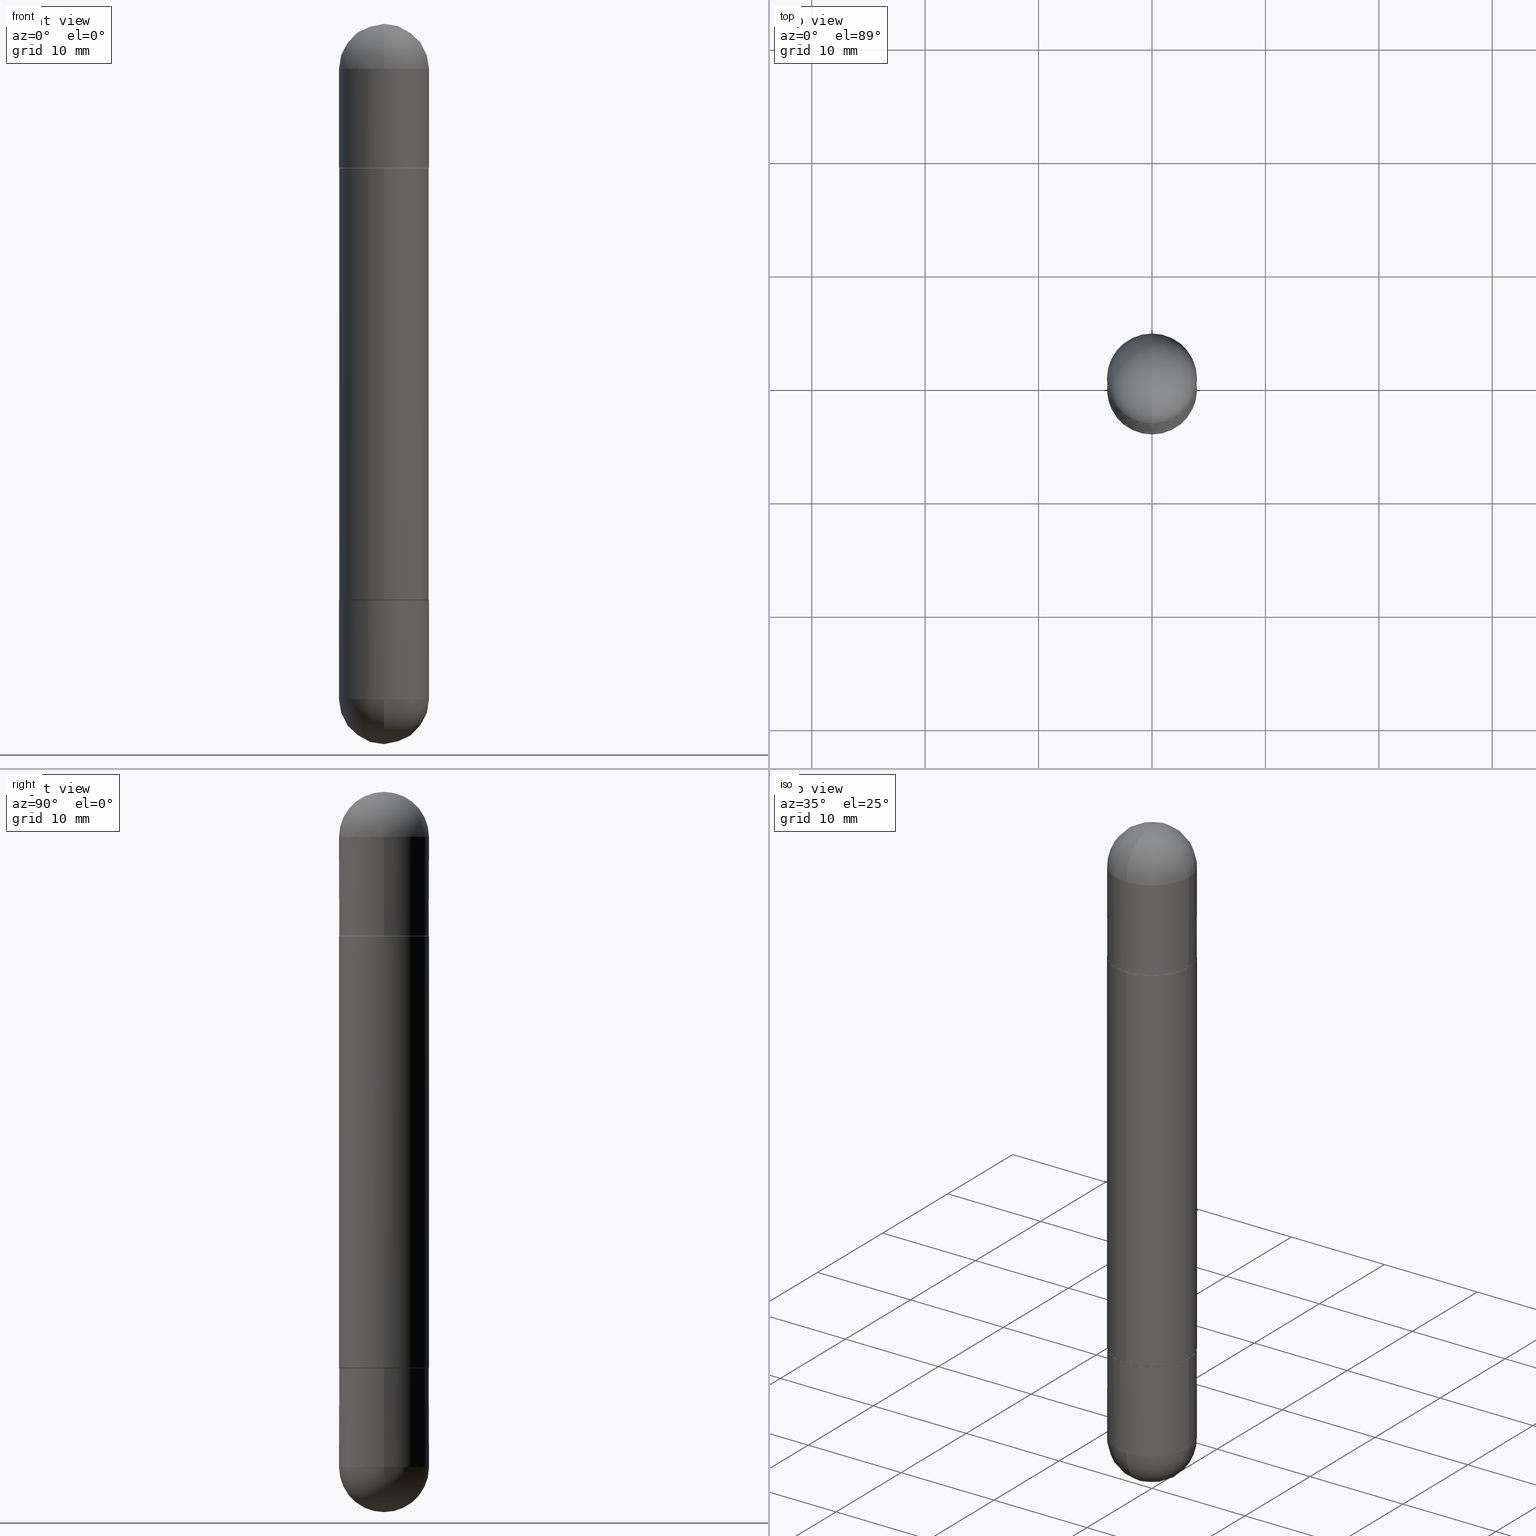
[diagram: canonical four-view strip — front | top / right | iso, engineering-drawing reading convention]
A machine part, canonical four-view strip (front | top / right | iso — engineering-drawing reading convention). The complete STEP part file that produces these views, byte-faithful:
ISO-10303-21;
HEADER;
FILE_DESCRIPTION (( 'STEP AP203' ),
    '1' );
FILE_NAME ('31474.STEP',
    '2024-03-01T12:42:06',
    ( '' ),
    ( '' ),
    'SwSTEP 2.0',
    'SolidWorks 2023',
    '' );
FILE_SCHEMA (( 'CONFIG_CONTROL_DESIGN' ));
ENDSEC;

DATA;
#1 = EDGE_CURVE ( 'NONE', #51, #445, #60, .T. ) ;
#2 = ORIENTED_EDGE ( 'NONE', *, *, #412, .T. ) ;
#3 = FACE_OUTER_BOUND ( 'NONE', #342, .T. ) ;
#4 = CARTESIAN_POINT ( 'NONE',  ( -1.091087918388432039E-15, -0.1562500000000072720, -0.5010000000000013332 ) ) ;
#5 = CONICAL_SURFACE ( 'NONE', #260, 0.1552499999999999991, 0.7853981633974141952 ) ;
#6 = CARTESIAN_POINT ( 'NONE',  ( 4.889962122832023554E-29, -6.984359634226483055E-15, -0.5000000000000004441 ) ) ;
#7 = AXIS2_PLACEMENT_3D ( 'NONE', #531, #464, #22 ) ;
#8 = CARTESIAN_POINT ( 'NONE',  ( 4.889962122832023554E-29, -6.984359634226483055E-15, -0.5000000000000004441 ) ) ;
#9 = DIRECTION ( 'NONE',  ( 1.000000000000000000, -6.982962677686269077E-15, 0.000000000000000000 ) ) ;
#10 = CARTESIAN_POINT ( 'NONE',  ( -1.084104955710744053E-15, -0.1552500000000069935, -0.5000000000000009992 ) ) ;
#11 = EDGE_CURVE ( 'NONE', #353, #181, #395, .T. ) ;
#12 = CARTESIAN_POINT ( 'NONE',  ( -1.084104955710744053E-15, -0.1552500000000069935, -1.999999999999999778 ) ) ;
#13 = DIRECTION ( 'NONE',  ( 2.444981061416011497E-29, -3.492179817113241133E-15, 1.000000000000000000 ) ) ;
#14 = DIRECTION ( 'NONE',  ( -6.982962677686265922E-15, -1.000000000000000000, -3.496765431890253764E-15 ) ) ;
#15 = CARTESIAN_POINT ( 'NONE',  ( 4.890937612370273194E-29, -6.982962677686291165E-15, -2.000000000000000000 ) ) ;
#16 = CARTESIAN_POINT ( 'NONE',  ( 0.1562500000000000000, -8.674148951188436448E-15, -2.343750000000000000 ) ) ;
#17 = ADVANCED_FACE ( 'NONE', ( #639 ), #572, .T. ) ;
#18 = CIRCLE ( 'NONE', #198, 0.1562500000000000000 ) ;
#19 = AXIS2_PLACEMENT_3D ( 'NONE', #517, #574, #270 ) ;
#20 = PRODUCT_DEFINITION_SHAPE ( 'NONE', 'NONE',  #343 ) ;
#21 = CARTESIAN_POINT ( 'NONE',  ( -0.1562500000000000000, -6.511108220648156257E-15, -0.1562500000000005551 ) ) ;
#22 = DIRECTION ( 'NONE',  ( 1.000000000000000000, -6.982962677686262766E-15, 0.000000000000000000 ) ) ;
#23 = AXIS2_PLACEMENT_3D ( 'NONE', #578, #334, #286 ) ;
#24 = CARTESIAN_POINT ( 'NONE',  ( 5.731567514496413899E-29, -8.183159387913622595E-15, -0.1562500000000005551 ) ) ;
#25 = ADVANCED_FACE ( 'NONE', ( #196 ), #115, .F. ) ;
#26 = CARTESIAN_POINT ( 'NONE',  ( 5.400447736582527652E-29, -8.657341756053672891E-15, -0.1562500000000005551 ) ) ;
#27 = EDGE_CURVE ( 'NONE', #489, #440, #34, .T. ) ;
#28 = CARTESIAN_POINT ( 'NONE',  ( -1.110223024625101517E-15, -0.1562500000000085487, -2.343749999999999556 ) ) ;
#29 = CARTESIAN_POINT ( 'NONE',  ( 1.071952812151802595E-15, 0.1562500000000001388, -2.500000000000000000 ) ) ;
#30 = CARTESIAN_POINT ( 'NONE',  ( 5.789233224183170584E-29, -9.193318162129576161E-15, -2.500000000000000000 ) ) ;
#31 = CIRCLE ( 'NONE', #420, 0.1562500000000000000 ) ;
#32 = DATE_AND_TIME ( #593, #759 ) ;
#33 = CARTESIAN_POINT ( 'NONE',  ( 0.1562500000000000000, -1.091087918388479174E-15, 7.619026212181150377E-30 ) ) ;
#34 = CIRCLE ( 'NONE', #729, 0.1562500000000002498 ) ;
#35 = APPLICATION_PROTOCOL_DEFINITION ( 'international standard', 'config_control_design', 1994, #152 ) ;
#36 = DIRECTION ( 'NONE',  ( -2.444981061416011497E-29, 3.492179817113241133E-15, -1.000000000000000000 ) ) ;
#37 = ADVANCED_FACE ( 'NONE', ( #607 ), #42, .T. ) ;
#38 = ORIENTED_EDGE ( 'NONE', *, *, #191, .F. ) ;
#39 = APPROVAL_ROLE ( '' ) ;
#40 = CARTESIAN_POINT ( 'NONE',  ( 4.889962122832023554E-29, -6.984359634226483055E-15, -0.5000000000000004441 ) ) ;
#41 = VERTEX_POINT ( 'NONE', #710 ) ;
#42 = CYLINDRICAL_SURFACE ( 'NONE', #120, 0.1562500000000001388 ) ;
#43 = PERSON_AND_ORGANIZATION ( #739, #791 ) ;
#44 = APPROVAL_PERSON_ORGANIZATION ( #165, #491, #39 ) ;
#45 = DIRECTION ( 'NONE',  ( 2.438088387897960049E-29, -3.491481338843145188E-15, -1.000000000000000000 ) ) ;
#46 = ADVANCED_FACE ( 'NONE', ( #567 ), #351, .T. ) ;
#47 = CARTESIAN_POINT ( 'NONE',  ( 0.000000000000000000, 0.000000000000000000, 0.000000000000000000 ) ) ;
#48 = ORIENTED_EDGE ( 'NONE', *, *, #267, .T. ) ;
#49 = DIRECTION ( 'NONE',  ( 4.851104656540797036E-15, 0.7071067811865257013, -0.7071067811865691111 ) ) ;
#50 = VERTEX_POINT ( 'NONE', #141 ) ;
#51 = VERTEX_POINT ( 'NONE', #266 ) ;
#52 = APPROVAL ( #720, 'UNSPECIFIED' ) ;
#53 = ORIENTED_EDGE ( 'NONE', *, *, #613, .T. ) ;
#54 = PLANE ( 'NONE',  #296 ) ;
#55 = MANIFOLD_SOLID_BREP ( 'Combine1', #678 ) ;
#56 = VECTOR ( 'NONE', #194, 39.37007874015748854 ) ;
#57 = ORIENTED_EDGE ( 'NONE', *, *, #329, .T. ) ;
#58 = CYLINDRICAL_SURFACE ( 'NONE', #700, 0.1562500000000000000 ) ;
#59 = LOCAL_TIME ( 7, 42, 6.000000000000000000, #608 ) ;
#60 = CIRCLE ( 'NONE', #690, 0.1562500000000000000 ) ;
#61 = APPROVAL_DATE_TIME ( #798, #491 ) ;
#62 = DIRECTION ( 'NONE',  ( -6.982962677686265922E-15, -1.000000000000000000, -3.519288880726909138E-15 ) ) ;
#63 = EDGE_CURVE ( 'NONE', #545, #817, #458, .T. ) ;
#64 = CARTESIAN_POINT ( 'NONE',  ( 0.000000000000000000, 0.000000000000000000, -2.500000000000000444 ) ) ;
#65 = DIRECTION ( 'NONE',  ( -2.445468806185136597E-29, 3.491481338843145583E-15, -1.000000000000000000 ) ) ;
#66 = ADVANCED_FACE ( 'NONE', ( #72 ), #211, .T. ) ;
#67 = ORIENTED_EDGE ( 'NONE', *, *, #737, .F. ) ;
#68 = FACE_OUTER_BOUND ( 'NONE', #89, .T. ) ;
#69 = VECTOR ( 'NONE', #337, 39.37007874015748143 ) ;
#70 = VECTOR ( 'NONE', #780, 39.37007874015748143 ) ;
#71 = VERTEX_POINT ( 'NONE', #553 ) ;
#72 = FACE_OUTER_BOUND ( 'NONE', #615, .T. ) ;
#73 = EDGE_CURVE ( 'NONE', #814, #509, #570, .T. ) ;
#74 = CLOSED_SHELL ( 'NONE', ( #17, #513, #707, #422, #528 ) ) ;
#75 =( LENGTH_UNIT ( ) NAMED_UNIT ( * ) SI_UNIT ( $, .METRE. ) );
#76 = CARTESIAN_POINT ( 'NONE',  ( 5.400447736582527652E-29, -8.657341756053672891E-15, -0.1562500000000005551 ) ) ;
#77 = DIRECTION ( 'NONE',  ( -6.982962677686265922E-15, -1.000000000000000000, -3.519288880726909138E-15 ) ) ;
#78 = ORIENTED_EDGE ( 'NONE', *, *, #86, .F. ) ;
#79 = CARTESIAN_POINT ( 'NONE',  ( 4.890937612370273194E-29, -6.982962677686291165E-15, -0.5000000000000006661 ) ) ;
#80 = CARTESIAN_POINT ( 'NONE',  ( 4.887517141770606822E-29, -6.980867454409367849E-15, -0.5010000000000007780 ) ) ;
#81 = VECTOR ( 'NONE', #575, 39.37007874015748143 ) ;
#82 = DIRECTION ( 'NONE',  ( 6.860497997771530774E-15, 1.000000000000000000, 0.000000000000000000 ) ) ;
#83 = FACE_OUTER_BOUND ( 'NONE', #619, .T. ) ;
#84 = CARTESIAN_POINT ( 'NONE',  ( 5.731567514496413899E-29, -8.183159387913622595E-15, -0.1562500000000005551 ) ) ;
#85 = PLANE ( 'NONE',  #368 ) ;
#86 = EDGE_CURVE ( 'NONE', #684, #181, #685, .T. ) ;
#87 = MANIFOLD_SOLID_BREP ( 'Body-Move/Copy2[1]', #74 ) ;
#88 = AXIS2_PLACEMENT_3D ( 'NONE', #40, #609, #743 ) ;
#89 = EDGE_LOOP ( 'NONE', ( #100, #676, #239, #385, #431 ) ) ;
#90 = FACE_OUTER_BOUND ( 'NONE', #725, .T. ) ;
#91 = DIRECTION ( 'NONE',  ( 1.000000000000000000, -6.982962677686269077E-15, 0.000000000000000000 ) ) ;
#92 = ADVANCED_FACE ( 'NONE', ( #327 ), #614, .T. ) ;
#93 = AXIS2_PLACEMENT_3D ( 'NONE', #526, #709, #650 ) ;
#94 = CARTESIAN_POINT ( 'NONE',  ( -1.084104955710744053E-15, -0.1552500000000069935, -0.5000000000000009992 ) ) ;
#95 = DIRECTION ( 'NONE',  ( 2.444981061416011497E-29, -3.492179817113241133E-15, 1.000000000000000000 ) ) ;
#96 = DIRECTION ( 'NONE',  ( -0.000000000000000000, -0.000000000000000000, -1.000000000000000000 ) ) ;
#97 = COORDINATED_UNIVERSAL_TIME_OFFSET ( 5, 0, .BEHIND. ) ;
#98 = CARTESIAN_POINT ( 'NONE',  ( 4.889962122832023554E-29, -6.984359634226483055E-15, -2.000000000000000444 ) ) ;
#99 = CIRCLE ( 'NONE', #88, 0.1552499999999999991 ) ;
#100 = ORIENTED_EDGE ( 'NONE', *, *, #223, .F. ) ;
#101 = DIRECTION ( 'NONE',  ( 0.000000000000000000, 0.000000000000000000, 1.000000000000000000 ) ) ;
#102 = AXIS2_PLACEMENT_3D ( 'NONE', #251, #501, #192 ) ;
#103 = CARTESIAN_POINT ( 'NONE',  ( 1.065092314154079104E-15, 0.1552499999999930047, -0.4999999999999998335 ) ) ;
#104 = ORIENTED_EDGE ( 'NONE', *, *, #276, .F. ) ;
#105 = DIRECTION ( 'NONE',  ( 1.000000000000000000, -6.982962677686265922E-15, -4.883557194083112340E-29 ) ) ;
#106 = PERSON_AND_ORGANIZATION_ROLE ( 'classification_officer' ) ;
#107 = ADVANCED_FACE ( 'NONE', ( #83 ), #383, .T. ) ;
#108 = ORIENTED_EDGE ( 'NONE', *, *, #446, .T. ) ;
#109 = CARTESIAN_POINT ( 'NONE',  ( 0.000000000000000000, 0.000000000000000000, 0.000000000000000000 ) ) ;
#110 = ORIENTED_EDGE ( 'NONE', *, *, #259, .T. ) ;
#111 = CIRCLE ( 'NONE', #659, 0.1562500000000002776 ) ;
#112 = CARTESIAN_POINT ( 'NONE',  ( -0.1562500000000000000, 1.071952812151801807E-15, -2.500000000000000444 ) ) ;
#113 = ADVANCED_FACE ( 'NONE', ( #587 ), #139, .T. ) ;
#114 = ORIENTED_EDGE ( 'NONE', *, *, #535, .F. ) ;
#115 = PLANE ( 'NONE',  #202 ) ;
#116 = AXIS2_PLACEMENT_3D ( 'NONE', #328, #765, #530 ) ;
#117 = APPROVAL_DATE_TIME ( #432, #588 ) ;
#118 = ORIENTED_EDGE ( 'NONE', *, *, #693, .F. ) ;
#119 = DIRECTION ( 'NONE',  ( 2.444981061416011497E-29, -3.492179817113241133E-15, 1.000000000000000000 ) ) ;
#120 = AXIS2_PLACEMENT_3D ( 'NONE', #176, #372, #14 ) ;
#121 = VERTEX_POINT ( 'NONE', #561 ) ;
#122 = EDGE_CURVE ( 'NONE', #302, #170, #718, .T. ) ;
#123 = DIRECTION ( 'NONE',  ( -6.982962677686265922E-15, -1.000000000000000000, -3.492179817113241133E-15 ) ) ;
#124 = SPHERICAL_SURFACE ( 'NONE', #597, 0.1562500000000002498 ) ;
#125 = VERTEX_POINT ( 'NONE', #275 ) ;
#126 = FACE_OUTER_BOUND ( 'NONE', #498, .T. ) ;
#127 = ORIENTED_EDGE ( 'NONE', *, *, #508, .F. ) ;
#128 = ORIENTED_EDGE ( 'NONE', *, *, #396, .T. ) ;
#129 = FACE_OUTER_BOUND ( 'NONE', #550, .T. ) ;
#130 = AXIS2_PLACEMENT_3D ( 'NONE', #758, #818, #621 ) ;
#131 = VERTEX_POINT ( 'NONE', #210 ) ;
#132 = LINE ( 'NONE', #323, #56 ) ;
#133 = ORIENTED_EDGE ( 'NONE', *, *, #543, .T. ) ;
#134 = DIRECTION ( 'NONE',  ( -6.982962677686265922E-15, -1.000000000000000000, 3.492179817113241133E-15 ) ) ;
#135 = DIRECTION ( 'NONE',  ( 2.445468806185136597E-29, -3.491481338843145583E-15, 1.000000000000000000 ) ) ;
#136 = ORIENTED_EDGE ( 'NONE', *, *, #717, .F. ) ;
#137 = DIRECTION ( 'NONE',  ( 1.000000000000000000, -6.982962677686265922E-15, 4.883557194083112340E-29 ) ) ;
#138 = UNCERTAINTY_MEASURE_WITH_UNIT (LENGTH_MEASURE( 1.000000000000000082E-05 ), #666, 'distance_accuracy_value', 'NONE');
#139 = CYLINDRICAL_SURFACE ( 'NONE', #631, 0.1562500000000000000 ) ;
#140 = DIRECTION ( 'NONE',  ( -2.444981061416011497E-29, 3.492179817113241133E-15, 1.000000000000000000 ) ) ;
#141 = CARTESIAN_POINT ( 'NONE',  ( 1.106670310946405735E-15, 0.1552499999999930047, -2.000000000000000888 ) ) ;
#142 = FACE_OUTER_BOUND ( 'NONE', #307, .T. ) ;
#143 = AXIS2_PLACEMENT_3D ( 'NONE', #109, #668, #240 ) ;
#144 = AXIS2_PLACEMENT_3D ( 'NONE', #225, #485, #803 ) ;
#145 =( GEOMETRIC_REPRESENTATION_CONTEXT ( 3 ) GLOBAL_UNCERTAINTY_ASSIGNED_CONTEXT ( ( #138 ) ) GLOBAL_UNIT_ASSIGNED_CONTEXT ( ( #666, #663, #671 ) ) REPRESENTATION_CONTEXT ( 'NONE', 'WORKASPACE' ) );
#146 = CC_DESIGN_DATE_AND_TIME_ASSIGNMENT ( #32, #356, ( #675 ) ) ;
#147 = AXIS2_PLACEMENT_3D ( 'NONE', #205, #391, #9 ) ;
#148 = VECTOR ( 'NONE', #331, 39.37007874015748854 ) ;
#149 = CYLINDRICAL_SURFACE ( 'NONE', #201, 0.1562500000000001388 ) ;
#150 = LINE ( 'NONE', #656, #81 ) ;
#151 = CARTESIAN_POINT ( 'NONE',  ( 5.400447736582527652E-29, -8.657341756053672891E-15, -2.343750000000000000 ) ) ;
#152 = APPLICATION_CONTEXT ( 'configuration controlled 3d designs of mechanical parts and assemblies' ) ;
#153 = CARTESIAN_POINT ( 'NONE',  ( -1.091087918388432039E-15, -0.1562500000000072720, -0.5010000000000013332 ) ) ;
#154 = ORIENTED_EDGE ( 'NONE', *, *, #191, .T. ) ;
#155 = DIRECTION ( 'NONE',  ( 1.000000000000000000, -6.982962677686262766E-15, 0.000000000000000000 ) ) ;
#156 = CARTESIAN_POINT ( 'NONE',  ( -1.091087918388479962E-15, -0.1562500000000001388, -2.500000000000001332 ) ) ;
#157 = VECTOR ( 'NONE', #36, 39.37007874015748143 ) ;
#158 = LOCAL_TIME ( 7, 42, 6.000000000000000000, #289 ) ;
#159 = DIRECTION ( 'NONE',  ( 6.982962677686265922E-15, 1.000000000000000000, 3.496765431890251398E-15 ) ) ;
#160 = CARTESIAN_POINT ( 'NONE',  ( 4.887517141770606822E-29, -6.980867454409367849E-15, -0.5010000000000007780 ) ) ;
#161 = CALENDAR_DATE ( 2024, 1, 3 ) ;
#162 = DIRECTION ( 'NONE',  ( 1.000000000000000000, -6.860497997771530774E-15, -4.840798879624142912E-29 ) ) ;
#163 = ORIENTED_EDGE ( 'NONE', *, *, #600, .T. ) ;
#164 = ADVANCED_FACE ( 'NONE', ( #633 ), #374, .T. ) ;
#165 = PERSON_AND_ORGANIZATION ( #739, #791 ) ;
#166 = ORIENTED_EDGE ( 'NONE', *, *, #697, .T. ) ;
#167 = CARTESIAN_POINT ( 'NONE',  ( 5.789233224183170584E-29, -9.193318162129576161E-15, -3.073328992872296367E-16 ) ) ;
#168 = AXIS2_PLACEMENT_3D ( 'NONE', #569, #692, #262 ) ;
#169 = AXIS2_PLACEMENT_3D ( 'NONE', #215, #339, #463 ) ;
#170 = VERTEX_POINT ( 'NONE', #652 ) ;
#171 = PLANE ( 'NONE',  #493 ) ;
#172 = VERTEX_POINT ( 'NONE', #94 ) ;
#173 = CIRCLE ( 'NONE', #188, 0.1552499999999999991 ) ;
#174 = FACE_OUTER_BOUND ( 'NONE', #691, .T. ) ;
#175 = ORIENTED_EDGE ( 'NONE', *, *, #338, .T. ) ;
#176 = CARTESIAN_POINT ( 'NONE',  ( 0.000000000000000000, 0.000000000000000000, -2.500000000000000444 ) ) ;
#177 = APPROVAL_DATE_TIME ( #603, #52 ) ;
#178 = VERTEX_POINT ( 'NONE', #28 ) ;
#179 = CARTESIAN_POINT ( 'NONE',  ( 4.889962122832023554E-29, -6.984359634226483055E-15, -0.5000000000000004441 ) ) ;
#180 = EDGE_CURVE ( 'NONE', #71, #131, #397, .T. ) ;
#181 = VERTEX_POINT ( 'NONE', #320 ) ;
#182 = ORIENTED_EDGE ( 'NONE', *, *, #478, .T. ) ;
#183 = CARTESIAN_POINT ( 'NONE',  ( 4.889962122832022994E-29, -6.984359634226482266E-15, -0.5000000000000006661 ) ) ;
#184 = VECTOR ( 'NONE', #728, 39.37007874015748143 ) ;
#185 = AXIS2_PLACEMENT_3D ( 'NONE', #715, #282, #159 ) ;
#186 = VERTEX_POINT ( 'NONE', #4 ) ;
#187 = CARTESIAN_POINT ( 'NONE',  ( 4.889962122832023554E-29, -6.984359634226483055E-15, -2.000000000000000444 ) ) ;
#188 = AXIS2_PLACEMENT_3D ( 'NONE', #411, #716, #777 ) ;
#189 = ORIENTED_EDGE ( 'NONE', *, *, #613, .F. ) ;
#190 = DIRECTION ( 'NONE',  ( 0.000000000000000000, 0.000000000000000000, 1.000000000000000000 ) ) ;
#191 = EDGE_CURVE ( 'NONE', #50, #181, #257, .T. ) ;
#192 = DIRECTION ( 'NONE',  ( 1.000000000000000000, -6.982962677686262766E-15, 0.000000000000000000 ) ) ;
#193 = ORIENTED_EDGE ( 'NONE', *, *, #388, .F. ) ;
#194 = DIRECTION ( 'NONE',  ( 4.851104656540797036E-15, 0.7071067811865257013, -0.7071067811865691111 ) ) ;
#195 = DIRECTION ( 'NONE',  ( -2.444981061416011497E-29, 3.492179817113241133E-15, -1.000000000000000000 ) ) ;
#196 = FACE_OUTER_BOUND ( 'NONE', #424, .T. ) ;
#197 = EDGE_CURVE ( 'NONE', #51, #131, #401, .T. ) ;
#198 = AXIS2_PLACEMENT_3D ( 'NONE', #355, #347, #418 ) ;
#199 = ORIENTED_EDGE ( 'NONE', *, *, #775, .T. ) ;
#200 = CYLINDRICAL_SURFACE ( 'NONE', #689, 0.1562500000000000000 ) ;
#201 = AXIS2_PLACEMENT_3D ( 'NONE', #702, #398, #642 ) ;
#202 = AXIS2_PLACEMENT_3D ( 'NONE', #183, #677, #123 ) ;
#203 = CARTESIAN_POINT ( 'NONE',  ( 5.400447736582527652E-29, -8.657341756053672891E-15, -2.343750000000000000 ) ) ;
#204 = ADVANCED_FACE ( 'NONE', ( #808 ), #124, .T. ) ;
#205 = CARTESIAN_POINT ( 'NONE',  ( 4.890937612370273194E-29, -6.982962677686291165E-15, -0.5000000000000006661 ) ) ;
#206 = CARTESIAN_POINT ( 'NONE',  ( -1.091087918388440322E-15, -0.1562500000000045242, -1.250000000000000222 ) ) ;
#207 = DIRECTION ( 'NONE',  ( -2.445468806185136597E-29, 3.491481338843145583E-15, 1.000000000000000000 ) ) ;
#208 = AXIS2_PLACEMENT_3D ( 'NONE', #549, #253, #246 ) ;
#209 = DIRECTION ( 'NONE',  ( 2.445468806185136597E-29, -3.491481338843145583E-15, 1.000000000000000000 ) ) ;
#210 = CARTESIAN_POINT ( 'NONE',  ( 0.1562500000000000000, -8.074050596074770339E-15, -0.5000000000000006661 ) ) ;
#211 = CONICAL_SURFACE ( 'NONE', #769, 0.1552499999999999991, 0.7853981633974141952 ) ;
#212 = CARTESIAN_POINT ( 'NONE',  ( -1.084104955710744053E-15, -0.1552500000000069935, -0.5000000000000009992 ) ) ;
#213 = CARTESIAN_POINT ( 'NONE',  ( 5.400447736582527652E-29, -8.657341756053672891E-15, -0.1562500000000005551 ) ) ;
#214 = VERTEX_POINT ( 'NONE', #462 ) ;
#215 = CARTESIAN_POINT ( 'NONE',  ( 4.887517141770606822E-29, -6.980867454409367849E-15, -0.5010000000000007780 ) ) ;
#216 = DIRECTION ( 'NONE',  ( 6.982962677686265922E-15, 1.000000000000000000, 3.496765431890251398E-15 ) ) ;
#217 = EDGE_CURVE ( 'NONE', #684, #261, #763, .T. ) ;
#218 = FACE_OUTER_BOUND ( 'NONE', #312, .T. ) ;
#219 = DIRECTION ( 'NONE',  ( 2.444981061416011497E-29, -3.492179817113241133E-15, 1.000000000000000000 ) ) ;
#220 = AXIS2_PLACEMENT_3D ( 'NONE', #555, #190, #764 ) ;
#221 = ORIENTED_EDGE ( 'NONE', *, *, #298, .T. ) ;
#222 = DIRECTION ( 'NONE',  ( -1.000000000000000000, 0.000000000000000000, 0.000000000000000000 ) ) ;
#223 = EDGE_CURVE ( 'NONE', #694, #816, #719, .T. ) ;
#224 = CALENDAR_DATE ( 2024, 1, 3 ) ;
#225 = CARTESIAN_POINT ( 'NONE',  ( 0.000000000000000000, 0.000000000000000000, -2.500000000000000444 ) ) ;
#226 = ADVANCED_FACE ( 'NONE', ( #590 ), #85, .F. ) ;
#227 = ORIENTED_EDGE ( 'NONE', *, *, #122, .F. ) ;
#228 = SECURITY_CLASSIFICATION_LEVEL ( 'unclassified' ) ;
#229 = LINE ( 'NONE', #103, #444 ) ;
#230 = ORIENTED_EDGE ( 'NONE', *, *, #217, .T. ) ;
#231 = DIRECTION ( 'NONE',  ( 6.982962677686265922E-15, 1.000000000000000000, 3.496765431890251398E-15 ) ) ;
#232 = CLOSED_SHELL ( 'NONE', ( #37, #630, #560, #25, #66, #439 ) ) ;
#233 = LINE ( 'NONE', #112, #778 ) ;
#234 = ORIENTED_EDGE ( 'NONE', *, *, #807, .T. ) ;
#235 = CC_DESIGN_PERSON_AND_ORGANIZATION_ASSIGNMENT ( #787, #299, ( #243 ) ) ;
#236 = ORIENTED_EDGE ( 'NONE', *, *, #681, .T. ) ;
#237 = DIRECTION ( 'NONE',  ( -2.444981061416011497E-29, 3.492179817113241133E-15, 1.000000000000000000 ) ) ;
#238 = ORIENTED_EDGE ( 'NONE', *, *, #358, .F. ) ;
#239 = ORIENTED_EDGE ( 'NONE', *, *, #63, .T. ) ;
#240 = DIRECTION ( 'NONE',  ( 1.000000000000000000, -6.982962677686266711E-15, 4.876176775795936353E-29 ) ) ;
#241 = VERTEX_POINT ( 'NONE', #16 ) ;
#242 = AXIS2_PLACEMENT_3D ( 'NONE', #98, #605, #673 ) ;
#243 = PRODUCT_DEFINITION_FORMATION_WITH_SPECIFIED_SOURCE ( 'ANY', '', #341, .NOT_KNOWN. ) ;
#244 = APPROVAL_PERSON_ORGANIZATION ( #43, #52, #303 ) ;
#245 = ORIENTED_EDGE ( 'NONE', *, *, #658, .F. ) ;
#246 = DIRECTION ( 'NONE',  ( 1.000000000000000000, -6.982962677686269077E-15, 0.000000000000000000 ) ) ;
#247 = EDGE_LOOP ( 'NONE', ( #238, #236, #108, #487, #602 ) ) ;
#248 = AXIS2_PLACEMENT_3D ( 'NONE', #562, #768, #507 ) ;
#249 = EDGE_CURVE ( 'NONE', #489, #816, #354, .T. ) ;
#250 = AXIS2_PLACEMENT_3D ( 'NONE', #160, #219, #586 ) ;
#251 = CARTESIAN_POINT ( 'NONE',  ( 5.731567514496413899E-29, -8.183159387913622595E-15, -2.343750000000000000 ) ) ;
#252 = ORIENTED_EDGE ( 'NONE', *, *, #1, .T. ) ;
#253 = DIRECTION ( 'NONE',  ( 2.445468806185136597E-29, -3.491481338843145583E-15, 1.000000000000000000 ) ) ;
#254 = DIRECTION ( 'NONE',  ( -2.444981061416011497E-29, 3.492179817113241133E-15, -1.000000000000000000 ) ) ;
#255 = VERTEX_POINT ( 'NONE', #330 ) ;
#256 = ORIENTED_EDGE ( 'NONE', *, *, #547, .F. ) ;
#257 = LINE ( 'NONE', #516, #148 ) ;
#258 = DIRECTION ( 'NONE',  ( -0.000000000000000000, -0.000000000000000000, -1.000000000000000000 ) ) ;
#259 = EDGE_CURVE ( 'NONE', #125, #121, #460, .T. ) ;
#260 = AXIS2_PLACEMENT_3D ( 'NONE', #512, #806, #62 ) ;
#261 = VERTEX_POINT ( 'NONE', #153 ) ;
#262 = DIRECTION ( 'NONE',  ( 1.000000000000000000, -6.982962677686262766E-15, 0.000000000000000000 ) ) ;
#263 = LOCAL_TIME ( 7, 42, 6.000000000000000000, #428 ) ;
#264 = DESIGN_CONTEXT ( 'detailed design', #373, 'design' ) ;
#265 = DIRECTION ( 'NONE',  ( 2.445468806185136597E-29, -3.491481338843145583E-15, 1.000000000000000000 ) ) ;
#266 = CARTESIAN_POINT ( 'NONE',  ( 0.1562500000000000000, -8.674148951188436448E-15, -0.1562500000000005551 ) ) ;
#267 = EDGE_CURVE ( 'NONE', #50, #371, #173, .T. ) ;
#268 = DIRECTION ( 'NONE',  ( 1.000000000000000000, -6.982962677686266711E-15, 0.000000000000000000 ) ) ;
#269 = DIRECTION ( 'NONE',  ( 1.000000000000000000, -6.982962677686265922E-15, -4.883557194083112340E-29 ) ) ;
#270 = DIRECTION ( 'NONE',  ( -1.000000000000000000, 6.982962677686265922E-15, 4.876176775795935793E-29 ) ) ;
#271 = DIRECTION ( 'NONE',  ( 2.444981061416011497E-29, -3.492179817113241133E-15, 1.000000000000000000 ) ) ;
#272 = DIRECTION ( 'NONE',  ( -2.444981061416011497E-29, 3.492179817113241133E-15, 1.000000000000000000 ) ) ;
#273 = CIRCLE ( 'NONE', #130, 0.1562500000000000000 ) ;
#274 = CARTESIAN_POINT ( 'NONE',  ( 5.400447736582527652E-29, -8.657341756053672891E-15, -0.1562500000000005551 ) ) ;
#275 = CARTESIAN_POINT ( 'NONE',  ( 5.789233224183170584E-29, -9.193318162129576161E-15, -3.073328992872296367E-16 ) ) ;
#276 = EDGE_CURVE ( 'NONE', #817, #545, #797, .T. ) ;
#277 = ORIENTED_EDGE ( 'NONE', *, *, #737, .T. ) ;
#278 = CARTESIAN_POINT ( 'NONE',  ( 0.1562500000000000000, -8.074050596074770339E-15, -2.000000000000000000 ) ) ;
#279 = AXIS2_PLACEMENT_3D ( 'NONE', #524, #771, #654 ) ;
#280 = LINE ( 'NONE', #472, #571 ) ;
#281 = PRODUCT_RELATED_PRODUCT_CATEGORY ( 'detail', '', ( #341 ) ) ;
#282 = DIRECTION ( 'NONE',  ( 1.000000000000000000, -6.982962677686265922E-15, -4.883557194083112340E-29 ) ) ;
#283 = DIRECTION ( 'NONE',  ( 6.860497997771530774E-15, 1.000000000000000000, 0.000000000000000000 ) ) ;
#284 = EDGE_LOOP ( 'NONE', ( #558, #350 ) ) ;
#285 = DIRECTION ( 'NONE',  ( 2.445468806185136597E-29, -3.491481338843145583E-15, 1.000000000000000000 ) ) ;
#286 = DIRECTION ( 'NONE',  ( -6.982962677686265922E-15, -1.000000000000000000, -3.519288880726909138E-15 ) ) ;
#287 = CIRCLE ( 'NONE', #380, 0.1552499999999999991 ) ;
#288 = APPROVAL_PERSON_ORGANIZATION ( #423, #588, #413 ) ;
#289 = COORDINATED_UNIVERSAL_TIME_OFFSET ( 5, 0, .BEHIND. ) ;
#290 = EDGE_CURVE ( 'NONE', #125, #445, #750, .T. ) ;
#291 = CARTESIAN_POINT ( 'NONE',  ( 0.1562500000000000000, -8.674148951188436448E-15, -0.1562500000000005551 ) ) ;
#292 = EDGE_LOOP ( 'NONE', ( #733, #795, #417, #533 ) ) ;
#293 = DATE_TIME_ROLE ( 'creation_date' ) ;
#294 = FACE_OUTER_BOUND ( 'NONE', #672, .T. ) ;
#295 = CARTESIAN_POINT ( 'NONE',  ( 5.400447736582527652E-29, -8.657341756053672891E-15, -2.343750000000000000 ) ) ;
#296 = AXIS2_PLACEMENT_3D ( 'NONE', #379, #625, #134 ) ;
#297 = ORIENTED_EDGE ( 'NONE', *, *, #500, .F. ) ;
#298 = EDGE_CURVE ( 'NONE', #789, #121, #497, .T. ) ;
#299 = PERSON_AND_ORGANIZATION_ROLE ( 'creator' ) ;
#300 = EDGE_LOOP ( 'NONE', ( #426, #554, #245, #740 ) ) ;
#301 = CARTESIAN_POINT ( 'NONE',  ( 4.890937612370273194E-29, -6.982962677686291165E-15, -2.000000000000000000 ) ) ;
#302 = VERTEX_POINT ( 'NONE', #404 ) ;
#303 = APPROVAL_ROLE ( '' ) ;
#304 = ORIENTED_EDGE ( 'NONE', *, *, #73, .T. ) ;
#305 = DIRECTION ( 'NONE',  ( -6.982962677686265922E-15, -1.000000000000000000, -3.519288880726909138E-15 ) ) ;
#306 = VERTEX_POINT ( 'NONE', #30 ) ;
#307 = EDGE_LOOP ( 'NONE', ( #784, #542, #786, #127 ) ) ;
#308 = ORIENTED_EDGE ( 'NONE', *, *, #592, .T. ) ;
#309 = EDGE_CURVE ( 'NONE', #255, #172, #384, .T. ) ;
#310 = DIRECTION ( 'NONE',  ( -2.445468806185136597E-29, 3.491481338843145583E-15, -1.000000000000000000 ) ) ;
#311 = AXIS2_PLACEMENT_3D ( 'NONE', #367, #537, #546 ) ;
#312 = EDGE_LOOP ( 'NONE', ( #612, #479, #175, #221 ) ) ;
#313 = CARTESIAN_POINT ( 'NONE',  ( -0.1562500000000000000, 1.071952812151801807E-15, -2.500000000000000444 ) ) ;
#314 = ORIENTED_EDGE ( 'NONE', *, *, #459, .F. ) ;
#315 = AXIS2_PLACEMENT_3D ( 'NONE', #566, #140, #390 ) ;
#316 = SHAPE_DEFINITION_REPRESENTATION ( #20, #473 ) ;
#317 = EDGE_LOOP ( 'NONE', ( #304, #454, #713, #314, #53 ) ) ;
#318 = CARTESIAN_POINT ( 'NONE',  ( 0.000000000000000000, 0.000000000000000000, -2.500000000000000444 ) ) ;
#319 = PLANE ( 'NONE',  #481 ) ;
#320 = CARTESIAN_POINT ( 'NONE',  ( 1.071952812151833755E-15, 0.1562499999999933109, -1.999000000000000554 ) ) ;
#321 = CC_DESIGN_PERSON_AND_ORGANIZATION_ASSIGNMENT ( #655, #106, ( #675 ) ) ;
#322 = AXIS2_PLACEMENT_3D ( 'NONE', #496, #258, #450 ) ;
#323 = CARTESIAN_POINT ( 'NONE',  ( 1.065092314154079104E-15, 0.1552499999999930047, -0.4999999999999998335 ) ) ;
#324 = AXIS2_PLACEMENT_3D ( 'NONE', #711, #285, #644 ) ;
#325 = DIRECTION ( 'NONE',  ( 2.445468806185136597E-29, -3.491481338843145583E-15, 1.000000000000000000 ) ) ;
#326 = CARTESIAN_POINT ( 'NONE',  ( 1.091087918388527886E-15, 0.1562499999999930334, -0.5000000000000001110 ) ) ;
#327 = FACE_OUTER_BOUND ( 'NONE', #433, .T. ) ;
#328 = CARTESIAN_POINT ( 'NONE',  ( 5.400447736582527652E-29, -8.657341756053672891E-15, -2.343750000000000000 ) ) ;
#329 = EDGE_CURVE ( 'NONE', #41, #628, #598, .T. ) ;
#330 = CARTESIAN_POINT ( 'NONE',  ( 1.068522563152965797E-15, 0.1552499999999930047, -0.4999999999999998335 ) ) ;
#331 = DIRECTION ( 'NONE',  ( 5.024295867787889629E-15, 0.7071067811865257013, 0.7071067811865691111 ) ) ;
#332 = SPHERICAL_SURFACE ( 'NONE', #116, 0.1562500000000002498 ) ;
#333 = CIRCLE ( 'NONE', #406, 0.1562500000000000000 ) ;
#334 = DIRECTION ( 'NONE',  ( 2.444981061416011497E-29, -3.492179817113241133E-15, 1.000000000000000000 ) ) ;
#335 = VECTOR ( 'NONE', #584, 39.37007874015748143 ) ;
#336 = CARTESIAN_POINT ( 'NONE',  ( 1.071952812151852491E-15, 0.1562499999999932832, -0.5010000000000002229 ) ) ;
#337 = DIRECTION ( 'NONE',  ( -2.444981061416011497E-29, 3.492179817113241133E-15, -1.000000000000000000 ) ) ;
#338 = EDGE_CURVE ( 'NONE', #445, #789, #370, .T. ) ;
#339 = DIRECTION ( 'NONE',  ( 2.444981061416011497E-29, -3.492179817113241133E-15, 1.000000000000000000 ) ) ;
#340 = DIRECTION ( 'NONE',  ( 1.000000000000000000, -6.982962677686265922E-15, -4.883557194083112340E-29 ) ) ;
#341 = PRODUCT ( '31474', '31474', '', ( #532 ) ) ;
#342 = EDGE_LOOP ( 'NONE', ( #800, #449, #230, #483 ) ) ;
#343 = PRODUCT_DEFINITION ( 'UNKNOWN', '', #243, #264 ) ;
#344 = ORIENTED_EDGE ( 'NONE', *, *, #508, .T. ) ;
#345 = MANIFOLD_SOLID_BREP ( 'Mirror4[4]', #747 ) ;
#346 = PERSON_AND_ORGANIZATION_ROLE ( 'creator' ) ;
#347 = DIRECTION ( 'NONE',  ( -2.445468806185136597E-29, 3.491481338843145583E-15, 1.000000000000000000 ) ) ;
#348 = AXIS2_PLACEMENT_3D ( 'NONE', #389, #754, #564 ) ;
#349 = AXIS2_PLACEMENT_3D ( 'NONE', #15, #770, #525 ) ;
#350 = ORIENTED_EDGE ( 'NONE', *, *, #180, .F. ) ;
#351 = CONICAL_SURFACE ( 'NONE', #248, 0.1552499999999999991, 0.7853981633974141952 ) ;
#352 = DIRECTION ( 'NONE',  ( 1.000000000000000000, 0.000000000000000000, 0.000000000000000000 ) ) ;
#353 = VERTEX_POINT ( 'NONE', #782 ) ;
#354 = CIRCLE ( 'NONE', #811, 0.1562500000000002498 ) ;
#355 = CARTESIAN_POINT ( 'NONE',  ( 5.731567514496413899E-29, -8.183159387913622595E-15, -2.343750000000000000 ) ) ;
#356 = DATE_TIME_ROLE ( 'classification_date' ) ;
#357 = SPHERICAL_SURFACE ( 'NONE', #492, 0.1562500000000002498 ) ;
#358 = EDGE_CURVE ( 'NONE', #509, #214, #280, .T. ) ;
#359 = EDGE_LOOP ( 'NONE', ( #667, #421, #128, #698 ) ) ;
#360 = APPROVAL_STATUS ( 'not_yet_approved' ) ;
#361 = DIRECTION ( 'NONE',  ( -2.445468806185136877E-29, 3.491481338843145188E-15, -1.000000000000000000 ) ) ;
#362 = EDGE_CURVE ( 'NONE', #475, #817, #150, .T. ) ;
#363 = VECTOR ( 'NONE', #551, 39.37007874015748143 ) ;
#364 = ORIENTED_EDGE ( 'NONE', *, *, #538, .F. ) ;
#365 = CIRCLE ( 'NONE', #324, 0.1562500000000000000 ) ;
#366 = PERSON_AND_ORGANIZATION_ROLE ( 'design_supplier' ) ;
#367 = CARTESIAN_POINT ( 'NONE',  ( 0.000000000000000000, 0.000000000000000000, -2.500000000000000444 ) ) ;
#368 = AXIS2_PLACEMENT_3D ( 'NONE', #326, #583, #414 ) ;
#369 = ORIENTED_EDGE ( 'NONE', *, *, #402, .T. ) ;
#370 = CIRCLE ( 'NONE', #7, 0.1562500000000000000 ) ;
#371 = VERTEX_POINT ( 'NONE', #12 ) ;
#372 = DIRECTION ( 'NONE',  ( -2.444981061416011497E-29, 3.492179817113241133E-15, -1.000000000000000000 ) ) ;
#373 = APPLICATION_CONTEXT ( 'configuration controlled 3d designs of mechanical parts and assemblies' ) ;
#374 = SPHERICAL_SURFACE ( 'NONE', #749, 0.1562500000000002498 ) ;
#375 = ORIENTED_EDGE ( 'NONE', *, *, #122, .T. ) ;
#376 = CYLINDRICAL_SURFACE ( 'NONE', #714, 0.1562500000000000000 ) ;
#377 = EDGE_CURVE ( 'NONE', #186, #442, #111, .T. ) ;
#378 = EDGE_LOOP ( 'NONE', ( #78, #687, #344, #760 ) ) ;
#379 = CARTESIAN_POINT ( 'NONE',  ( 4.889962122832022994E-29, -6.984359634226482266E-15, -2.000000000000000000 ) ) ;
#380 = AXIS2_PLACEMENT_3D ( 'NONE', #179, #119, #305 ) ;
#381 = ORIENTED_EDGE ( 'NONE', *, *, #646, .F. ) ;
#382 = FACE_OUTER_BOUND ( 'NONE', #292, .T. ) ;
#383 = SPHERICAL_SURFACE ( 'NONE', #794, 0.1562500000000002498 ) ;
#384 = CIRCLE ( 'NONE', #23, 0.1552499999999999991 ) ;
#385 = ORIENTED_EDGE ( 'NONE', *, *, #362, .F. ) ;
#386 = CARTESIAN_POINT ( 'NONE',  ( 0.000000000000000000, 0.000000000000000000, -2.500000000000000444 ) ) ;
#387 = DIRECTION ( 'NONE',  ( 1.000000000000000000, -6.982962677686269077E-15, 0.000000000000000000 ) ) ;
#388 = EDGE_CURVE ( 'NONE', #371, #353, #518, .T. ) ;
#389 = CARTESIAN_POINT ( 'NONE',  ( 5.731567514496413899E-29, -8.183159387913622595E-15, -0.1562500000000005551 ) ) ;
#390 = DIRECTION ( 'NONE',  ( -6.982962677686265922E-15, -1.000000000000000000, 3.496765431890250609E-15 ) ) ;
#391 = DIRECTION ( 'NONE',  ( 2.445468806185136597E-29, -3.491481338843145583E-15, 1.000000000000000000 ) ) ;
#392 = CIRCLE ( 'NONE', #610, 0.1562500000000000000 ) ;
#393 = LINE ( 'NONE', #29, #70 ) ;
#394 = CIRCLE ( 'NONE', #169, 0.1562500000000002776 ) ;
#395 = CIRCLE ( 'NONE', #315, 0.1562500000000002776 ) ;
#396 = EDGE_CURVE ( 'NONE', #186, #628, #645, .T. ) ;
#397 = CIRCLE ( 'NONE', #651, 0.1562500000000000000 ) ;
#398 = DIRECTION ( 'NONE',  ( -2.444981061416011497E-29, 3.492179817113241133E-15, -1.000000000000000000 ) ) ;
#399 = AXIS2_PLACEMENT_3D ( 'NONE', #8, #13, #520 ) ;
#400 = DIRECTION ( 'NONE',  ( -4.937700262164378437E-15, -0.7071067811865208164, 0.7071067811865739960 ) ) ;
#401 = LINE ( 'NONE', #505, #335 ) ;
#402 = EDGE_CURVE ( 'NONE', #214, #805, #392, .T. ) ;
#403 = DIRECTION ( 'NONE',  ( -7.105427357601000281E-15, -1.000000000000000000, 0.000000000000000000 ) ) ;
#404 = CARTESIAN_POINT ( 'NONE',  ( -1.084104955710744053E-15, -0.1552500000000069935, -0.5000000000000009992 ) ) ;
#405 = DIRECTION ( 'NONE',  ( -4.937700262164378437E-15, -0.7071067811865208164, -0.7071067811865739960 ) ) ;
#406 = AXIS2_PLACEMENT_3D ( 'NONE', #762, #207, #453 ) ;
#407 = DIRECTION ( 'NONE',  ( 1.000000000000000000, -6.860497997771530774E-15, -4.840798879624142912E-29 ) ) ;
#408 = ADVANCED_FACE ( 'NONE', ( #174 ), #552, .T. ) ;
#409 = DIRECTION ( 'NONE',  ( -6.982962677686265922E-15, -1.000000000000000000, 3.496765431890250609E-15 ) ) ;
#410 = EDGE_LOOP ( 'NONE', ( #234, #369 ) ) ;
#411 = CARTESIAN_POINT ( 'NONE',  ( 4.889962122832023554E-29, -6.984359634226483055E-15, -2.000000000000000444 ) ) ;
#412 = EDGE_CURVE ( 'NONE', #170, #302, #99, .T. ) ;
#413 = APPROVAL_ROLE ( '' ) ;
#414 = DIRECTION ( 'NONE',  ( -1.000000000000000000, 6.982962677686265922E-15, 4.876176775795935793E-29 ) ) ;
#415 = ORIENTED_EDGE ( 'NONE', *, *, #298, .F. ) ;
#416 = APPROVAL_STATUS ( 'not_yet_approved' ) ;
#417 = ORIENTED_EDGE ( 'NONE', *, *, #796, .T. ) ;
#418 = DIRECTION ( 'NONE',  ( 1.000000000000000000, -6.982962677686262766E-15, 0.000000000000000000 ) ) ;
#419 = AXIS2_PLACEMENT_3D ( 'NONE', #203, #137, #499 ) ;
#420 = AXIS2_PLACEMENT_3D ( 'NONE', #84, #325, #155 ) ;
#421 = ORIENTED_EDGE ( 'NONE', *, *, #377, .F. ) ;
#422 = ADVANCED_FACE ( 'NONE', ( #480 ), #171, .F. ) ;
#423 = PERSON_AND_ORGANIZATION ( #739, #791 ) ;
#424 = EDGE_LOOP ( 'NONE', ( #436, #557 ) ) ;
#425 = LINE ( 'NONE', #601, #157 ) ;
#426 = ORIENTED_EDGE ( 'NONE', *, *, #796, .F. ) ;
#427 = ORIENTED_EDGE ( 'NONE', *, *, #478, .F. ) ;
#428 = COORDINATED_UNIVERSAL_TIME_OFFSET ( 5, 0, .BEHIND. ) ;
#429 = CC_DESIGN_PERSON_AND_ORGANIZATION_ASSIGNMENT ( #548, #366, ( #243 ) ) ;
#430 = FACE_OUTER_BOUND ( 'NONE', #247, .T. ) ;
#431 = ORIENTED_EDGE ( 'NONE', *, *, #761, .F. ) ;
#432 = DATE_AND_TIME ( #536, #59 ) ;
#433 = EDGE_LOOP ( 'NONE', ( #297, #227, #199, #665 ) ) ;
#434 = CYLINDRICAL_SURFACE ( 'NONE', #311, 0.1562500000000001388 ) ;
#435 = ADVANCED_FACE ( 'NONE', ( #661 ), #434, .T. ) ;
#436 = ORIENTED_EDGE ( 'NONE', *, *, #538, .T. ) ;
#437 = ORIENTED_EDGE ( 'NONE', *, *, #73, .F. ) ;
#438 = DIRECTION ( 'NONE',  ( -2.445468806185136597E-29, 3.491481338843145583E-15, 1.000000000000000000 ) ) ;
#439 = ADVANCED_FACE ( 'NONE', ( #724 ), #799, .T. ) ;
#440 = VERTEX_POINT ( 'NONE', #490 ) ;
#441 = CARTESIAN_POINT ( 'NONE',  ( -0.1562500000000000000, -6.511108220648155468E-15, -0.5000000000000006661 ) ) ;
#442 = VERTEX_POINT ( 'NONE', #616 ) ;
#443 = DIRECTION ( 'NONE',  ( -6.982962677686265922E-15, -1.000000000000000000, -3.519288880726909138E-15 ) ) ;
#444 = VECTOR ( 'NONE', #49, 39.37007874015748854 ) ;
#445 = VERTEX_POINT ( 'NONE', #664 ) ;
#446 = EDGE_CURVE ( 'NONE', #178, #241, #18, .T. ) ;
#447 = CARTESIAN_POINT ( 'NONE',  ( 0.000000000000000000, 0.000000000000000000, -2.500000000000000444 ) ) ;
#448 = AXIS2_PLACEMENT_3D ( 'NONE', #815, #254, #451 ) ;
#449 = ORIENTED_EDGE ( 'NONE', *, *, #500, .T. ) ;
#450 = DIRECTION ( 'NONE',  ( -1.000000000000000000, 0.000000000000000000, 0.000000000000000000 ) ) ;
#451 = DIRECTION ( 'NONE',  ( -6.982962677686265922E-15, -1.000000000000000000, -3.519288880726909138E-15 ) ) ;
#452 = DIRECTION ( 'NONE',  ( 6.982962677686265922E-15, 1.000000000000000000, 3.496765431890251398E-15 ) ) ;
#453 = DIRECTION ( 'NONE',  ( 1.000000000000000000, -6.982962677686262766E-15, 0.000000000000000000 ) ) ;
#454 = ORIENTED_EDGE ( 'NONE', *, *, #358, .T. ) ;
#455 = AXIS2_PLACEMENT_3D ( 'NONE', #187, #237, #785 ) ;
#456 = CARTESIAN_POINT ( 'NONE',  ( 4.887517141770606822E-29, -6.980867454409367849E-15, -1.998999999999999888 ) ) ;
#457 = CARTESIAN_POINT ( 'NONE',  ( 3.056226326770015212E-29, -4.365224771391552501E-15, -1.250000000000000222 ) ) ;
#458 = CIRCLE ( 'NONE', #147, 0.1562500000000000000 ) ;
#459 = EDGE_CURVE ( 'NONE', #241, #805, #596, .T. ) ;
#460 = CIRCLE ( 'NONE', #632, 0.1562500000000002498 ) ;
#461 = PLANE ( 'NONE',  #19 ) ;
#462 = CARTESIAN_POINT ( 'NONE',  ( -0.1562500000000000000, -6.472838008174799945E-15, -2.000000000000000000 ) ) ;
#463 = DIRECTION ( 'NONE',  ( -6.982962677686265922E-15, -1.000000000000000000, -3.496765431890250609E-15 ) ) ;
#464 = DIRECTION ( 'NONE',  ( 2.445468806185136597E-29, -3.491481338843145583E-15, 1.000000000000000000 ) ) ;
#465 = SPHERICAL_SURFACE ( 'NONE', #185, 0.1562500000000002498 ) ;
#466 = VECTOR ( 'NONE', #708, 39.37007874015748854 ) ;
#467 = CC_DESIGN_PERSON_AND_ORGANIZATION_ASSIGNMENT ( #783, #346, ( #343 ) ) ;
#468 = AXIS2_PLACEMENT_3D ( 'NONE', #80, #95, #577 ) ;
#469 = DIRECTION ( 'NONE',  ( 1.000000000000000000, -6.982962677686262766E-15, 0.000000000000000000 ) ) ;
#470 = PERSON_AND_ORGANIZATION_ROLE ( 'design_owner' ) ;
#471 = AXIS2_PLACEMENT_3D ( 'NONE', #766, #209, #91 ) ;
#472 = CARTESIAN_POINT ( 'NONE',  ( -0.1562500000000000000, 1.110223024625156540E-15, -7.685836078523291160E-30 ) ) ;
#473 = ADVANCED_BREP_SHAPE_REPRESENTATION ( '31474', ( #87, #627, #622, #345, #55, #641 ), #145 ) ;
#474 = DATE_AND_TIME ( #224, #263 ) ;
#475 = VERTEX_POINT ( 'NONE', #291 ) ;
#476 = DIRECTION ( 'NONE',  ( 1.000000000000000000, -6.982962677686269077E-15, 0.000000000000000000 ) ) ;
#477 = ORIENTED_EDGE ( 'NONE', *, *, #197, .F. ) ;
#478 = EDGE_CURVE ( 'NONE', #371, #50, #565, .T. ) ;
#479 = ORIENTED_EDGE ( 'NONE', *, *, #290, .T. ) ;
#480 = FACE_OUTER_BOUND ( 'NONE', #410, .T. ) ;
#481 = AXIS2_PLACEMENT_3D ( 'NONE', #683, #688, #813 ) ;
#482 = CIRCLE ( 'NONE', #349, 0.1562500000000000000 ) ;
#483 = ORIENTED_EDGE ( 'NONE', *, *, #775, .F. ) ;
#484 = LENGTH_MEASURE_WITH_UNIT ( LENGTH_MEASURE( 0.02539999999999999897 ), #75 );
#485 = DIRECTION ( 'NONE',  ( -2.444981061416011497E-29, 3.492179817113241133E-15, -1.000000000000000000 ) ) ;
#486 = ORIENTED_EDGE ( 'NONE', *, *, #290, .F. ) ;
#487 = ORIENTED_EDGE ( 'NONE', *, *, #459, .T. ) ;
#488 = DIRECTION ( 'NONE',  ( 1.000000000000000000, -6.982962677686266711E-15, 4.876176775795936353E-29 ) ) ;
#489 = VERTEX_POINT ( 'NONE', #167 ) ;
#490 = CARTESIAN_POINT ( 'NONE',  ( 1.091087918388535577E-15, 0.1562499999999916733, -0.1562500000000000000 ) ) ;
#491 = APPROVAL ( #416, 'UNSPECIFIED' ) ;
#492 = AXIS2_PLACEMENT_3D ( 'NONE', #295, #540, #793 ) ;
#493 = AXIS2_PLACEMENT_3D ( 'NONE', #534, #45, #788 ) ;
#494 = VECTOR ( 'NONE', #405, 39.37007874015748854 ) ;
#495 = ORIENTED_EDGE ( 'NONE', *, *, #27, .F. ) ;
#496 = CARTESIAN_POINT ( 'NONE',  ( 3.056226326770015212E-29, -4.365224771391552501E-15, -1.250000000000000222 ) ) ;
#497 = CIRCLE ( 'NONE', #93, 0.1562500000000000000 ) ;
#498 = EDGE_LOOP ( 'NONE', ( #427, #772 ) ) ;
#499 = DIRECTION ( 'NONE',  ( 6.982962677686265922E-15, 1.000000000000000000, 0.000000000000000000 ) ) ;
#500 = EDGE_CURVE ( 'NONE', #170, #684, #229, .T. ) ;
#501 = DIRECTION ( 'NONE',  ( -2.445468806185136597E-29, 3.491481338843145583E-15, 1.000000000000000000 ) ) ;
#502 = DIRECTION ( 'NONE',  ( -1.000000000000000000, 6.982962677686265922E-15, 4.883557194083112340E-29 ) ) ;
#503 = ORIENTED_EDGE ( 'NONE', *, *, #646, .T. ) ;
#504 = FACE_OUTER_BOUND ( 'NONE', #662, .T. ) ;
#505 = CARTESIAN_POINT ( 'NONE',  ( 0.1562500000000000000, -1.091087918388479174E-15, -2.500000000000000444 ) ) ;
#506 = AXIS2_PLACEMENT_3D ( 'NONE', #151, #773, #403 ) ;
#507 = DIRECTION ( 'NONE',  ( -6.982962677686265922E-15, -1.000000000000000000, 3.519288880726909138E-15 ) ) ;
#508 = EDGE_CURVE ( 'NONE', #261, #353, #425, .T. ) ;
#509 = VERTEX_POINT ( 'NONE', #734 ) ;
#510 = DIRECTION ( 'NONE',  ( 1.000000000000000000, -6.982962677686266711E-15, 0.000000000000000000 ) ) ;
#511 = VECTOR ( 'NONE', #195, 39.37007874015748143 ) ;
#512 = CARTESIAN_POINT ( 'NONE',  ( 4.889962122832023554E-29, -6.984359634226483055E-15, -0.5000000000000004441 ) ) ;
#513 = ADVANCED_FACE ( 'NONE', ( #294 ), #357, .T. ) ;
#514 = DIMENSIONAL_EXPONENTS ( 1.000000000000000000, 0.000000000000000000, 0.000000000000000000, 0.000000000000000000, 0.000000000000000000, 0.000000000000000000, 0.000000000000000000 ) ;
#515 = CARTESIAN_POINT ( 'NONE',  ( 4.889962122832023554E-29, -6.984359634226483055E-15, -0.5000000000000004441 ) ) ;
#516 = CARTESIAN_POINT ( 'NONE',  ( 1.103117597267604244E-15, 0.1552499999999930047, -2.000000000000000888 ) ) ;
#517 = CARTESIAN_POINT ( 'NONE',  ( 1.091087918388527886E-15, 0.1562499999999930334, -0.5000000000000001110 ) ) ;
#518 = LINE ( 'NONE', #712, #726 ) ;
#519 = CC_DESIGN_PERSON_AND_ORGANIZATION_ASSIGNMENT ( #732, #470, ( #341 ) ) ;
#520 = DIRECTION ( 'NONE',  ( -6.982962677686265922E-15, -1.000000000000000000, -3.519288880726909138E-15 ) ) ;
#521 = CIRCLE ( 'NONE', #168, 0.1562500000000000000 ) ;
#522 = LOCAL_TIME ( 7, 42, 6.000000000000000000, #544 ) ;
#523 = FACE_OUTER_BOUND ( 'NONE', #802, .T. ) ;
#524 = CARTESIAN_POINT ( 'NONE',  ( 5.400447736582527652E-29, -8.657341756053672891E-15, -0.1562500000000005551 ) ) ;
#525 = DIRECTION ( 'NONE',  ( 1.000000000000000000, -6.982962677686269077E-15, 0.000000000000000000 ) ) ;
#526 = CARTESIAN_POINT ( 'NONE',  ( 5.731567514496413899E-29, -8.183159387913622595E-15, -0.1562500000000005551 ) ) ;
#527 = DIRECTION ( 'NONE',  ( 1.000000000000000000, -6.982962677686262766E-15, 0.000000000000000000 ) ) ;
#528 = ADVANCED_FACE ( 'NONE', ( #430 ), #738, .T. ) ;
#529 = CARTESIAN_POINT ( 'NONE',  ( 5.731567514496413899E-29, -8.183159387913622595E-15, -0.1562500000000005551 ) ) ;
#530 = DIRECTION ( 'NONE',  ( 6.982962677686265922E-15, 1.000000000000000000, -3.496765431890251398E-15 ) ) ;
#531 = CARTESIAN_POINT ( 'NONE',  ( 5.731567514496413899E-29, -8.183159387913622595E-15, -0.1562500000000005551 ) ) ;
#532 = MECHANICAL_CONTEXT ( 'NONE', #152, 'mechanical' ) ;
#533 = ORIENTED_EDGE ( 'NONE', *, *, #697, .F. ) ;
#534 = CARTESIAN_POINT ( 'NONE',  ( 1.091087918388527886E-15, 0.1562499999999930334, -2.000000000000000444 ) ) ;
#535 = EDGE_CURVE ( 'NONE', #694, #545, #233, .T. ) ;
#536 = CALENDAR_DATE ( 2024, 1, 3 ) ;
#537 = DIRECTION ( 'NONE',  ( -2.444981061416011497E-29, 3.492179817113241133E-15, -1.000000000000000000 ) ) ;
#538 = EDGE_CURVE ( 'NONE', #172, #255, #287, .T. ) ;
#539 = ORIENTED_EDGE ( 'NONE', *, *, #681, .F. ) ;
#540 = DIRECTION ( 'NONE',  ( -1.000000000000000000, 6.982962677686265922E-15, -4.883557194083112340E-29 ) ) ;
#541 = CIRCLE ( 'NONE', #419, 0.1562500000000002498 ) ;
#542 = ORIENTED_EDGE ( 'NONE', *, *, #86, .T. ) ;
#543 = EDGE_CURVE ( 'NONE', #131, #71, #591, .T. ) ;
#544 = COORDINATED_UNIVERSAL_TIME_OFFSET ( 5, 0, .BEHIND. ) ;
#545 = VERTEX_POINT ( 'NONE', #441 ) ;
#546 = DIRECTION ( 'NONE',  ( -6.982962677686265922E-15, -1.000000000000000000, -3.496765431890253764E-15 ) ) ;
#547 = EDGE_CURVE ( 'NONE', #789, #71, #680, .T. ) ;
#548 = PERSON_AND_ORGANIZATION ( #739, #791 ) ;
#549 = CARTESIAN_POINT ( 'NONE',  ( 4.890937612370273194E-29, -6.982962677686291165E-15, -0.5000000000000006661 ) ) ;
#550 = EDGE_LOOP ( 'NONE', ( #114, #67, #381, #748, #657 ) ) ;
#551 = DIRECTION ( 'NONE',  ( -2.445468806185136877E-29, 3.491481338843145188E-15, -1.000000000000000000 ) ) ;
#552 = CONICAL_SURFACE ( 'NONE', #242, 0.1552499999999999991, 0.7853981633974141952 ) ;
#553 = CARTESIAN_POINT ( 'NONE',  ( -0.1562500000000000000, -6.511108220648155468E-15, -0.5000000000000006661 ) ) ;
#554 = ORIENTED_EDGE ( 'NONE', *, *, #746, .T. ) ;
#555 = CARTESIAN_POINT ( 'NONE',  ( 0.000000000000000000, 0.000000000000000000, -1.250000000000000222 ) ) ;
#556 = ADVANCED_FACE ( 'NONE', ( #3 ), #648, .T. ) ;
#557 = ORIENTED_EDGE ( 'NONE', *, *, #309, .T. ) ;
#558 = ORIENTED_EDGE ( 'NONE', *, *, #543, .F. ) ;
#559 = DIRECTION ( 'NONE',  ( 1.000000000000000000, -6.982962677686266711E-15, 0.000000000000000000 ) ) ;
#560 = ADVANCED_FACE ( 'NONE', ( #637 ), #635, .F. ) ;
#561 = CARTESIAN_POINT ( 'NONE',  ( -1.071952812151746981E-15, -0.1562500000000085487, -0.1562500000000011102 ) ) ;
#562 = CARTESIAN_POINT ( 'NONE',  ( 4.889962122832023554E-29, -6.984359634226483055E-15, -2.000000000000000444 ) ) ;
#563 = ORIENTED_EDGE ( 'NONE', *, *, #63, .F. ) ;
#564 = DIRECTION ( 'NONE',  ( 1.000000000000000000, -6.982962677686262766E-15, 0.000000000000000000 ) ) ;
#565 = CIRCLE ( 'NONE', #455, 0.1552499999999999991 ) ;
#566 = CARTESIAN_POINT ( 'NONE',  ( 4.887517141770606822E-29, -6.980867454409367849E-15, -1.998999999999999888 ) ) ;
#567 = FACE_OUTER_BOUND ( 'NONE', #812, .T. ) ;
#568 = ADVANCED_FACE ( 'NONE', ( #126 ), #54, .F. ) ;
#569 = CARTESIAN_POINT ( 'NONE',  ( 5.731567514496413899E-29, -8.183159387913622595E-15, -2.343750000000000000 ) ) ;
#570 = CIRCLE ( 'NONE', #102, 0.1562500000000000000 ) ;
#571 = VECTOR ( 'NONE', #721, 39.37007874015748143 ) ;
#572 = CYLINDRICAL_SURFACE ( 'NONE', #809, 0.1562500000000000000 ) ;
#573 = ADVANCED_FACE ( 'NONE', ( #68 ), #58, .T. ) ;
#574 = DIRECTION ( 'NONE',  ( 2.438088387897960049E-29, -3.491481338843145188E-15, 1.000000000000000000 ) ) ;
#575 = DIRECTION ( 'NONE',  ( -2.445468806185136877E-29, 3.491481338843145188E-15, -1.000000000000000000 ) ) ;
#576 = ORIENTED_EDGE ( 'NONE', *, *, #197, .T. ) ;
#577 = DIRECTION ( 'NONE',  ( -6.982962677686265922E-15, -1.000000000000000000, -3.496765431890250609E-15 ) ) ;
#578 = CARTESIAN_POINT ( 'NONE',  ( 4.889962122832023554E-29, -6.984359634226483055E-15, -0.5000000000000004441 ) ) ;
#579 = DIRECTION ( 'NONE',  ( 1.000000000000000000, -6.982962677686266711E-15, 0.000000000000000000 ) ) ;
#580 = CIRCLE ( 'NONE', #322, 0.1562500000000001388 ) ;
#581 = CC_DESIGN_SECURITY_CLASSIFICATION ( #675, ( #243 ) ) ;
#582 = LINE ( 'NONE', #10, #494 ) ;
#583 = DIRECTION ( 'NONE',  ( 2.438088387897960049E-29, -3.491481338843145188E-15, 1.000000000000000000 ) ) ;
#584 = DIRECTION ( 'NONE',  ( -2.445468806185136877E-29, 3.491481338843145188E-15, -1.000000000000000000 ) ) ;
#585 = ADVANCED_FACE ( 'NONE', ( #629 ), #319, .F. ) ;
#586 = DIRECTION ( 'NONE',  ( -6.982962677686265922E-15, -1.000000000000000000, -3.496765431890250609E-15 ) ) ;
#587 = FACE_OUTER_BOUND ( 'NONE', #730, .T. ) ;
#588 = APPROVAL ( #360, 'UNSPECIFIED' ) ;
#589 = CARTESIAN_POINT ( 'NONE',  ( 1.091087918388535577E-15, 0.1562499999999916733, -2.343750000000000444 ) ) ;
#590 = FACE_OUTER_BOUND ( 'NONE', #284, .T. ) ;
#591 = CIRCLE ( 'NONE', #208, 0.1562500000000000000 ) ;
#592 = EDGE_CURVE ( 'NONE', #306, #814, #541, .T. ) ;
#593 = CALENDAR_DATE ( 2024, 1, 3 ) ;
#594 = CC_DESIGN_APPROVAL ( #52, ( #343 ) ) ;
#595 = ORIENTED_EDGE ( 'NONE', *, *, #606, .F. ) ;
#596 = LINE ( 'NONE', #33, #184 ) ;
#597 = AXIS2_PLACEMENT_3D ( 'NONE', #213, #340, #216 ) ;
#598 = CIRCLE ( 'NONE', #617, 0.1562500000000001388 ) ;
#599 = APPLICATION_PROTOCOL_DEFINITION ( 'international standard', 'config_control_design', 1994, #373 ) ;
#600 = EDGE_CURVE ( 'NONE', #121, #51, #744, .T. ) ;
#601 = CARTESIAN_POINT ( 'NONE',  ( -1.091087918388479962E-15, -0.1562500000000001388, -2.500000000000001332 ) ) ;
#602 = ORIENTED_EDGE ( 'NONE', *, *, #402, .F. ) ;
#603 = DATE_AND_TIME ( #161, #158 ) ;
#604 = ORIENTED_EDGE ( 'NONE', *, *, #693, .T. ) ;
#605 = DIRECTION ( 'NONE',  ( -2.444981061416011497E-29, 3.492179817113241133E-15, 1.000000000000000000 ) ) ;
#606 = EDGE_CURVE ( 'NONE', #255, #442, #132, .T. ) ;
#607 = FACE_OUTER_BOUND ( 'NONE', #300, .T. ) ;
#608 = COORDINATED_UNIVERSAL_TIME_OFFSET ( 5, 0, .BEHIND. ) ;
#609 = DIRECTION ( 'NONE',  ( 2.444981061416011497E-29, -3.492179817113241133E-15, 1.000000000000000000 ) ) ;
#610 = AXIS2_PLACEMENT_3D ( 'NONE', #301, #438, #476 ) ;
#611 = AXIS2_PLACEMENT_3D ( 'NONE', #456, #272, #409 ) ;
#612 = ORIENTED_EDGE ( 'NONE', *, *, #259, .F. ) ;
#613 = EDGE_CURVE ( 'NONE', #241, #814, #521, .T. ) ;
#614 = CONICAL_SURFACE ( 'NONE', #448, 0.1552499999999999991, 0.7853981633974141952 ) ;
#615 = EDGE_LOOP ( 'NONE', ( #595, #364, #166, #695 ) ) ;
#616 = CARTESIAN_POINT ( 'NONE',  ( 1.071952812151852491E-15, 0.1562499999999932832, -0.5010000000000002229 ) ) ;
#617 = AXIS2_PLACEMENT_3D ( 'NONE', #457, #96, #222 ) ;
#618 = ORIENTED_EDGE ( 'NONE', *, *, #592, .F. ) ;
#619 = EDGE_LOOP ( 'NONE', ( #495, #741, #634, #503 ) ) ;
#620 = ORIENTED_EDGE ( 'NONE', *, *, #338, .F. ) ;
#621 = DIRECTION ( 'NONE',  ( 1.000000000000000000, -6.982962677686262766E-15, 0.000000000000000000 ) ) ;
#622 = MANIFOLD_SOLID_BREP ( 'Mirror4[3]', #643 ) ;
#623 = CARTESIAN_POINT ( 'NONE',  ( 5.400447736582527652E-29, -8.657341756053672891E-15, -0.1562500000000005551 ) ) ;
#624 = ORIENTED_EDGE ( 'NONE', *, *, #388, .T. ) ;
#625 = DIRECTION ( 'NONE',  ( -2.444981061416010936E-29, 3.492179817113241133E-15, 1.000000000000000000 ) ) ;
#626 = DIRECTION ( 'NONE',  ( -6.982962677686265922E-15, -1.000000000000000000, 0.000000000000000000 ) ) ;
#627 = MANIFOLD_SOLID_BREP ( 'Mirror4[1]', #232 ) ;
#628 = VERTEX_POINT ( 'NONE', #206 ) ;
#629 = FACE_OUTER_BOUND ( 'NONE', #727, .T. ) ;
#630 = ADVANCED_FACE ( 'NONE', ( #382 ), #5, .T. ) ;
#631 = AXIS2_PLACEMENT_3D ( 'NONE', #64, #638, #579 ) ;
#632 = AXIS2_PLACEMENT_3D ( 'NONE', #274, #407, #82 ) ;
#633 = FACE_OUTER_BOUND ( 'NONE', #735, .T. ) ;
#634 = ORIENTED_EDGE ( 'NONE', *, *, #761, .T. ) ;
#635 = PLANE ( 'NONE',  #220 ) ;
#636 = ADVANCED_FACE ( 'NONE', ( #129 ), #376, .T. ) ;
#637 = FACE_OUTER_BOUND ( 'NONE', #804, .T. ) ;
#638 = DIRECTION ( 'NONE',  ( -2.445468806185136597E-29, 3.491481338843145583E-15, -1.000000000000000000 ) ) ;
#639 = FACE_OUTER_BOUND ( 'NONE', #317, .T. ) ;
#640 = CC_DESIGN_DATE_AND_TIME_ASSIGNMENT ( #474, #293, ( #343 ) ) ;
#641 = AXIS2_PLACEMENT_3D ( 'NONE', #736, #101, #352 ) ;
#642 = DIRECTION ( 'NONE',  ( -6.982962677686265922E-15, -1.000000000000000000, -3.496765431890253764E-15 ) ) ;
#643 = CLOSED_SHELL ( 'NONE', ( #573, #107, #204, #781, #636 ) ) ;
#644 = DIRECTION ( 'NONE',  ( 1.000000000000000000, -6.982962677686262766E-15, 0.000000000000000000 ) ) ;
#645 = LINE ( 'NONE', #156, #69 ) ;
#646 = EDGE_CURVE ( 'NONE', #475, #440, #273, .T. ) ;
#647 = DIRECTION ( 'NONE',  ( 2.445468806185136597E-29, -3.491481338843145583E-15, 1.000000000000000000 ) ) ;
#648 = CONICAL_SURFACE ( 'NONE', #767, 0.1552499999999999991, 0.7853981633974141952 ) ;
#649 = CARTESIAN_POINT ( 'NONE',  ( 0.1562500000000000000, -8.074050596074770339E-15, -0.5000000000000006661 ) ) ;
#650 = DIRECTION ( 'NONE',  ( 1.000000000000000000, -6.982962677686262766E-15, 0.000000000000000000 ) ) ;
#651 = AXIS2_PLACEMENT_3D ( 'NONE', #79, #265, #387 ) ;
#652 = CARTESIAN_POINT ( 'NONE',  ( 1.068522563152965797E-15, 0.1552499999999930047, -0.4999999999999998335 ) ) ;
#653 = CARTESIAN_POINT ( 'NONE',  ( -1.071952812151746981E-15, -0.1562500000000085487, -0.1562500000000011102 ) ) ;
#654 = DIRECTION ( 'NONE',  ( -6.982962677686265922E-15, -1.000000000000000000, 0.000000000000000000 ) ) ;
#655 = PERSON_AND_ORGANIZATION ( #739, #791 ) ;
#656 = CARTESIAN_POINT ( 'NONE',  ( 0.1562500000000000000, -1.091087918388479174E-15, -2.500000000000000444 ) ) ;
#657 = ORIENTED_EDGE ( 'NONE', *, *, #276, .T. ) ;
#658 = EDGE_CURVE ( 'NONE', #628, #41, #580, .T. ) ;
#659 = AXIS2_PLACEMENT_3D ( 'NONE', #703, #271, #774 ) ;
#660 = CALENDAR_DATE ( 2024, 1, 3 ) ;
#661 = FACE_OUTER_BOUND ( 'NONE', #378, .T. ) ;
#662 = EDGE_LOOP ( 'NONE', ( #256, #620, #792, #576, #133 ) ) ;
#663 =( NAMED_UNIT ( * ) PLANE_ANGLE_UNIT ( ) SI_UNIT ( $, .RADIAN. ) );
#664 = CARTESIAN_POINT ( 'NONE',  ( 1.091087918388535577E-15, 0.1562499999999916733, -0.1562500000000000000 ) ) ;
#665 = ORIENTED_EDGE ( 'NONE', *, *, #731, .T. ) ;
#666 =( CONVERSION_BASED_UNIT ( 'INCH', #484 ) LENGTH_UNIT ( ) NAMED_UNIT ( #514 ) );
#667 = ORIENTED_EDGE ( 'NONE', *, *, #746, .F. ) ;
#668 = DIRECTION ( 'NONE',  ( -2.445468806185136597E-29, 3.491481338843145583E-15, 1.000000000000000000 ) ) ;
#669 = ADVANCED_FACE ( 'NONE', ( #504 ), #200, .T. ) ;
#670 = ORIENTED_EDGE ( 'NONE', *, *, #600, .F. ) ;
#671 =( NAMED_UNIT ( * ) SI_UNIT ( $, .STERADIAN. ) SOLID_ANGLE_UNIT ( ) );
#672 = EDGE_LOOP ( 'NONE', ( #618, #604, #539, #437 ) ) ;
#673 = DIRECTION ( 'NONE',  ( -6.982962677686265922E-15, -1.000000000000000000, 3.519288880726909138E-15 ) ) ;
#674 = CIRCLE ( 'NONE', #611, 0.1562500000000002776 ) ;
#675 = SECURITY_CLASSIFICATION ( '', '', #228 ) ;
#676 = ORIENTED_EDGE ( 'NONE', *, *, #535, .T. ) ;
#678 = CLOSED_SHELL ( 'NONE', ( #408, #752, #556, #585, #92, #435, #46, #568 ) ) ;
#677 = DIRECTION ( 'NONE',  ( -2.444981061416010936E-29, 3.492179817113241133E-15, -1.000000000000000000 ) ) ;
#679 = ORIENTED_EDGE ( 'NONE', *, *, #180, .T. ) ;
#680 = LINE ( 'NONE', #313, #363 ) ;
#681 = EDGE_CURVE ( 'NONE', #509, #178, #333, .T. ) ;
#682 = ORIENTED_EDGE ( 'NONE', *, *, #11, .F. ) ;
#683 = CARTESIAN_POINT ( 'NONE',  ( 4.889962122832022994E-29, -6.984359634226482266E-15, -0.5000000000000006661 ) ) ;
#684 = VERTEX_POINT ( 'NONE', #336 ) ;
#685 = LINE ( 'NONE', #755, #511 ) ;
#686 = CARTESIAN_POINT ( 'NONE',  ( 5.400447736582527652E-29, -8.657341756053672891E-15, -0.1562500000000005551 ) ) ;
#687 = ORIENTED_EDGE ( 'NONE', *, *, #731, .F. ) ;
#688 = DIRECTION ( 'NONE',  ( -2.444981061416010936E-29, 3.492179817113241133E-15, -1.000000000000000000 ) ) ;
#689 = AXIS2_PLACEMENT_3D ( 'NONE', #447, #65, #510 ) ;
#690 = AXIS2_PLACEMENT_3D ( 'NONE', #24, #135, #527 ) ;
#691 = EDGE_LOOP ( 'NONE', ( #182, #154, #682, #193 ) ) ;
#692 = DIRECTION ( 'NONE',  ( -2.445468806185136597E-29, 3.491481338843145583E-15, 1.000000000000000000 ) ) ;
#693 = EDGE_CURVE ( 'NONE', #306, #178, #790, .T. ) ;
#694 = VERTEX_POINT ( 'NONE', #776 ) ;
#695 = ORIENTED_EDGE ( 'NONE', *, *, #377, .T. ) ;
#696 = DIRECTION ( 'NONE',  ( -2.444981061416011497E-29, 3.492179817113241133E-15, -1.000000000000000000 ) ) ;
#697 = EDGE_CURVE ( 'NONE', #172, #186, #699, .T. ) ;
#698 = ORIENTED_EDGE ( 'NONE', *, *, #329, .F. ) ;
#699 = LINE ( 'NONE', #212, #466 ) ;
#700 = AXIS2_PLACEMENT_3D ( 'NONE', #386, #310, #268 ) ;
#701 = CC_DESIGN_APPROVAL ( #588, ( #243 ) ) ;
#702 = CARTESIAN_POINT ( 'NONE',  ( 0.000000000000000000, 0.000000000000000000, -2.500000000000000444 ) ) ;
#703 = CARTESIAN_POINT ( 'NONE',  ( 4.887517141770606822E-29, -6.980867454409367849E-15, -0.5010000000000007780 ) ) ;
#704 = AXIS2_PLACEMENT_3D ( 'NONE', #529, #647, #469 ) ;
#705 = ORIENTED_EDGE ( 'NONE', *, *, #547, .T. ) ;
#706 = ORIENTED_EDGE ( 'NONE', *, *, #27, .T. ) ;
#707 = ADVANCED_FACE ( 'NONE', ( #90 ), #332, .T. ) ;
#708 = DIRECTION ( 'NONE',  ( -4.937700262164378437E-15, -0.7071067811865208164, -0.7071067811865739960 ) ) ;
#709 = DIRECTION ( 'NONE',  ( 2.445468806185136597E-29, -3.491481338843145583E-15, 1.000000000000000000 ) ) ;
#710 = CARTESIAN_POINT ( 'NONE',  ( 1.071952812151851110E-15, 0.1562499999999957812, -1.250000000000000222 ) ) ;
#711 = CARTESIAN_POINT ( 'NONE',  ( 5.731567514496413899E-29, -8.183159387913622595E-15, -0.1562500000000005551 ) ) ;
#712 = CARTESIAN_POINT ( 'NONE',  ( -1.084104955710744053E-15, -0.1552500000000069935, -1.999999999999999778 ) ) ;
#713 = ORIENTED_EDGE ( 'NONE', *, *, #807, .F. ) ;
#714 = AXIS2_PLACEMENT_3D ( 'NONE', #318, #751, #559 ) ;
#715 = CARTESIAN_POINT ( 'NONE',  ( 5.400447736582527652E-29, -8.657341756053672891E-15, -0.1562500000000005551 ) ) ;
#716 = DIRECTION ( 'NONE',  ( -2.444981061416011497E-29, 3.492179817113241133E-15, 1.000000000000000000 ) ) ;
#717 = EDGE_CURVE ( 'NONE', #181, #353, #674, .T. ) ;
#718 = CIRCLE ( 'NONE', #399, 0.1552499999999999991 ) ;
#719 = CIRCLE ( 'NONE', #704, 0.1562500000000000000 ) ;
#720 = APPROVAL_STATUS ( 'not_yet_approved' ) ;
#721 = DIRECTION ( 'NONE',  ( -2.445468806185136877E-29, 3.491481338843145188E-15, 1.000000000000000000 ) ) ;
#722 = ORIENTED_EDGE ( 'NONE', *, *, #658, .T. ) ;
#723 = ORIENTED_EDGE ( 'NONE', *, *, #223, .T. ) ;
#724 = FACE_OUTER_BOUND ( 'NONE', #359, .T. ) ;
#725 = EDGE_LOOP ( 'NONE', ( #118, #308, #189, #757 ) ) ;
#726 = VECTOR ( 'NONE', #400, 39.37007874015748854 ) ;
#727 = EDGE_LOOP ( 'NONE', ( #375, #2 ) ) ;
#728 = DIRECTION ( 'NONE',  ( -2.445468806185136877E-29, 3.491481338843145188E-15, 1.000000000000000000 ) ) ;
#729 = AXIS2_PLACEMENT_3D ( 'NONE', #686, #502, #626 ) ;
#730 = EDGE_LOOP ( 'NONE', ( #415, #705, #679, #477, #670 ) ) ;
#731 = EDGE_CURVE ( 'NONE', #261, #684, #394, .T. ) ;
#732 = PERSON_AND_ORGANIZATION ( #739, #791 ) ;
#733 = ORIENTED_EDGE ( 'NONE', *, *, #309, .F. ) ;
#734 = CARTESIAN_POINT ( 'NONE',  ( -0.1562500000000000000, -6.472838008174800734E-15, -2.343750000000000000 ) ) ;
#735 = EDGE_LOOP ( 'NONE', ( #486, #110, #163, #252 ) ) ;
#736 = CARTESIAN_POINT ( 'NONE',  ( 0.000000000000000000, 0.000000000000000000, 0.000000000000000000 ) ) ;
#737 = EDGE_CURVE ( 'NONE', #440, #694, #31, .T. ) ;
#738 = CYLINDRICAL_SURFACE ( 'NONE', #143, 0.1562500000000000000 ) ;
#739 = PERSON ( 'UNSPECIFIED', 'UNSPECIFIED', 'UNSPECIFIED', ('UNSPECIFIED'), ('UNSPECIFIED'), ('UNSPECIFIED') ) ;
#740 = ORIENTED_EDGE ( 'NONE', *, *, #396, .F. ) ;
#741 = ORIENTED_EDGE ( 'NONE', *, *, #249, .T. ) ;
#742 = EDGE_LOOP ( 'NONE', ( #753, #706, #277, #723 ) ) ;
#743 = DIRECTION ( 'NONE',  ( -6.982962677686265922E-15, -1.000000000000000000, -3.519288880726909138E-15 ) ) ;
#744 = CIRCLE ( 'NONE', #348, 0.1562500000000000000 ) ;
#745 = CC_DESIGN_APPROVAL ( #491, ( #675 ) ) ;
#746 = EDGE_CURVE ( 'NONE', #442, #41, #393, .T. ) ;
#747 = CLOSED_SHELL ( 'NONE', ( #113, #164, #756, #226, #669 ) ) ;
#748 = ORIENTED_EDGE ( 'NONE', *, *, #362, .T. ) ;
#749 = AXIS2_PLACEMENT_3D ( 'NONE', #623, #105, #231 ) ;
#750 = CIRCLE ( 'NONE', #279, 0.1562500000000002498 ) ;
#751 = DIRECTION ( 'NONE',  ( -2.445468806185136597E-29, 3.491481338843145583E-15, -1.000000000000000000 ) ) ;
#752 = ADVANCED_FACE ( 'NONE', ( #142 ), #149, .T. ) ;
#753 = ORIENTED_EDGE ( 'NONE', *, *, #249, .F. ) ;
#754 = DIRECTION ( 'NONE',  ( 2.445468806185136597E-29, -3.491481338843145583E-15, 1.000000000000000000 ) ) ;
#755 = CARTESIAN_POINT ( 'NONE',  ( 1.071952812151802595E-15, 0.1562500000000001388, -2.500000000000000000 ) ) ;
#756 = ADVANCED_FACE ( 'NONE', ( #218 ), #465, .T. ) ;
#757 = ORIENTED_EDGE ( 'NONE', *, *, #446, .F. ) ;
#758 = CARTESIAN_POINT ( 'NONE',  ( 5.731567514496413899E-29, -8.183159387913622595E-15, -0.1562500000000005551 ) ) ;
#759 = LOCAL_TIME ( 7, 42, 6.000000000000000000, #97 ) ;
#760 = ORIENTED_EDGE ( 'NONE', *, *, #11, .T. ) ;
#761 = EDGE_CURVE ( 'NONE', #816, #475, #365, .T. ) ;
#762 = CARTESIAN_POINT ( 'NONE',  ( 5.731567514496413899E-29, -8.183159387913622595E-15, -2.343750000000000000 ) ) ;
#763 = CIRCLE ( 'NONE', #250, 0.1562500000000002776 ) ;
#764 = DIRECTION ( 'NONE',  ( -1.000000000000000000, 0.000000000000000000, 0.000000000000000000 ) ) ;
#765 = DIRECTION ( 'NONE',  ( -1.000000000000000000, 6.982962677686265922E-15, -4.883557194083112340E-29 ) ) ;
#766 = CARTESIAN_POINT ( 'NONE',  ( 4.890937612370273194E-29, -6.982962677686291165E-15, -0.5000000000000006661 ) ) ;
#767 = AXIS2_PLACEMENT_3D ( 'NONE', #6, #696, #443 ) ;
#768 = DIRECTION ( 'NONE',  ( -2.444981061416011497E-29, 3.492179817113241133E-15, 1.000000000000000000 ) ) ;
#769 = AXIS2_PLACEMENT_3D ( 'NONE', #515, #810, #77 ) ;
#770 = DIRECTION ( 'NONE',  ( -2.445468806185136597E-29, 3.491481338843145583E-15, 1.000000000000000000 ) ) ;
#771 = DIRECTION ( 'NONE',  ( -1.000000000000000000, 6.982962677686265922E-15, 4.883557194083112340E-29 ) ) ;
#772 = ORIENTED_EDGE ( 'NONE', *, *, #267, .F. ) ;
#773 = DIRECTION ( 'NONE',  ( -1.000000000000000000, 7.105427357601001070E-15, -4.926315508542082329E-29 ) ) ;
#774 = DIRECTION ( 'NONE',  ( -6.982962677686265922E-15, -1.000000000000000000, -3.496765431890250609E-15 ) ) ;
#775 = EDGE_CURVE ( 'NONE', #302, #261, #582, .T. ) ;
#776 = CARTESIAN_POINT ( 'NONE',  ( -0.1562500000000000000, -6.511108220648156257E-15, -0.1562500000000005551 ) ) ;
#777 = DIRECTION ( 'NONE',  ( -6.982962677686265922E-15, -1.000000000000000000, 3.519288880726909138E-15 ) ) ;
#778 = VECTOR ( 'NONE', #361, 39.37007874015748143 ) ;
#779 = CIRCLE ( 'NONE', #468, 0.1562500000000002776 ) ;
#780 = DIRECTION ( 'NONE',  ( -2.444981061416011497E-29, 3.492179817113241133E-15, -1.000000000000000000 ) ) ;
#781 = ADVANCED_FACE ( 'NONE', ( #523 ), #461, .F. ) ;
#782 = CARTESIAN_POINT ( 'NONE',  ( -1.091087918388432039E-15, -0.1562500000000072442, -1.998999999999999444 ) ) ;
#783 = PERSON_AND_ORGANIZATION ( #739, #791 ) ;
#784 = ORIENTED_EDGE ( 'NONE', *, *, #217, .F. ) ;
#785 = DIRECTION ( 'NONE',  ( -6.982962677686265922E-15, -1.000000000000000000, 3.519288880726909138E-15 ) ) ;
#786 = ORIENTED_EDGE ( 'NONE', *, *, #717, .T. ) ;
#787 = PERSON_AND_ORGANIZATION ( #739, #791 ) ;
#788 = DIRECTION ( 'NONE',  ( -1.000000000000000000, 6.982962677686265922E-15, -4.876176775795935793E-29 ) ) ;
#789 = VERTEX_POINT ( 'NONE', #21 ) ;
#790 = CIRCLE ( 'NONE', #506, 0.1562500000000002498 ) ;
#791 = ORGANIZATION ( 'UNSPECIFIED', 'UNSPECIFIED', '' ) ;
#792 = ORIENTED_EDGE ( 'NONE', *, *, #1, .F. ) ;
#793 = DIRECTION ( 'NONE',  ( 6.982962677686265922E-15, 1.000000000000000000, -3.496765431890251398E-15 ) ) ;
#794 = AXIS2_PLACEMENT_3D ( 'NONE', #76, #269, #452 ) ;
#795 = ORIENTED_EDGE ( 'NONE', *, *, #606, .T. ) ;
#796 = EDGE_CURVE ( 'NONE', #442, #186, #779, .T. ) ;
#797 = CIRCLE ( 'NONE', #471, 0.1562500000000000000 ) ;
#798 = DATE_AND_TIME ( #660, #522 ) ;
#799 = CYLINDRICAL_SURFACE ( 'NONE', #144, 0.1562500000000001388 ) ;
#800 = ORIENTED_EDGE ( 'NONE', *, *, #412, .F. ) ;
#801 = DIRECTION ( 'NONE',  ( -2.445468806185136597E-29, 3.491481338843145583E-15, 1.000000000000000000 ) ) ;
#802 = EDGE_LOOP ( 'NONE', ( #104, #563 ) ) ;
#803 = DIRECTION ( 'NONE',  ( -6.982962677686265922E-15, -1.000000000000000000, -3.496765431890253764E-15 ) ) ;
#804 = EDGE_LOOP ( 'NONE', ( #722, #57 ) ) ;
#805 = VERTEX_POINT ( 'NONE', #278 ) ;
#806 = DIRECTION ( 'NONE',  ( -2.444981061416011497E-29, 3.492179817113241133E-15, -1.000000000000000000 ) ) ;
#807 = EDGE_CURVE ( 'NONE', #805, #214, #482, .T. ) ;
#808 = FACE_OUTER_BOUND ( 'NONE', #742, .T. ) ;
#809 = AXIS2_PLACEMENT_3D ( 'NONE', #47, #801, #488 ) ;
#810 = DIRECTION ( 'NONE',  ( -2.444981061416011497E-29, 3.492179817113241133E-15, -1.000000000000000000 ) ) ;
#811 = AXIS2_PLACEMENT_3D ( 'NONE', #26, #162, #283 ) ;
#812 = EDGE_LOOP ( 'NONE', ( #38, #48, #624, #136 ) ) ;
#813 = DIRECTION ( 'NONE',  ( -6.982962677686265922E-15, -1.000000000000000000, -3.492179817113241133E-15 ) ) ;
#814 = VERTEX_POINT ( 'NONE', #589 ) ;
#815 = CARTESIAN_POINT ( 'NONE',  ( 4.889962122832023554E-29, -6.984359634226483055E-15, -0.5000000000000004441 ) ) ;
#816 = VERTEX_POINT ( 'NONE', #653 ) ;
#817 = VERTEX_POINT ( 'NONE', #649 ) ;
#818 = DIRECTION ( 'NONE',  ( 2.445468806185136597E-29, -3.491481338843145583E-15, 1.000000000000000000 ) ) ;
ENDSEC;
END-ISO-10303-21;
